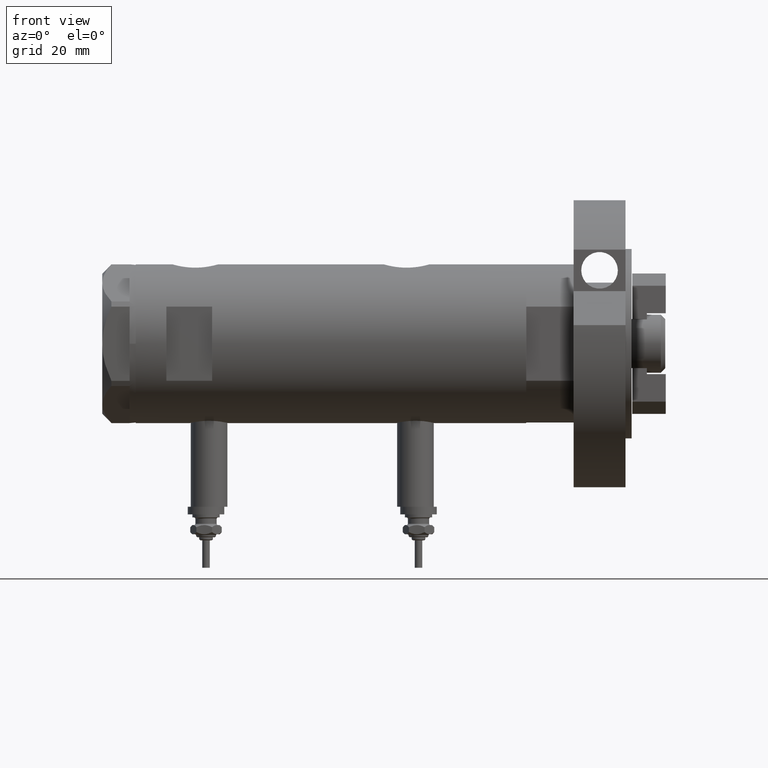
[diagram: clean part render]
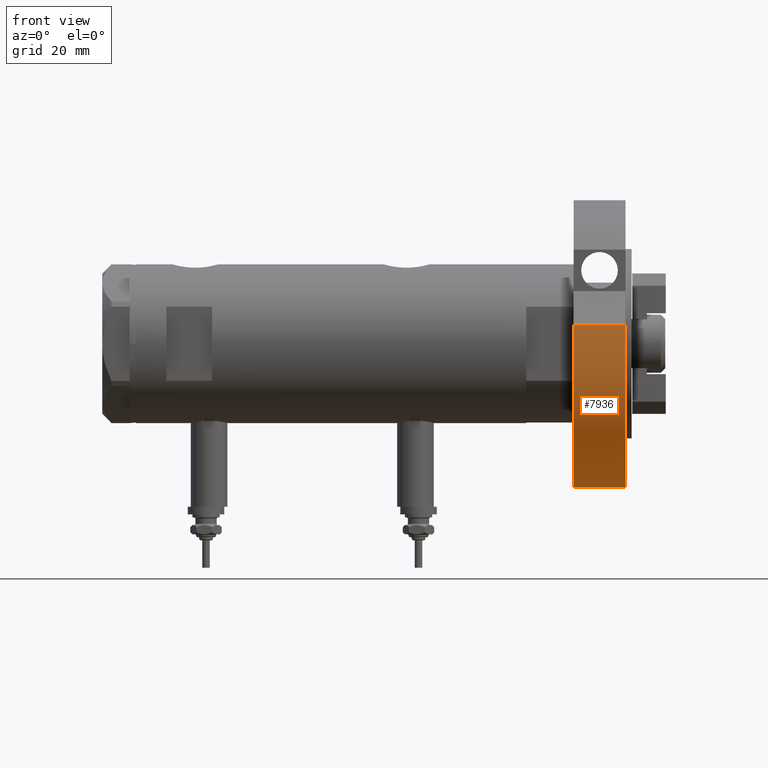
[diagram: same view with one face highlighted and labeled with its STEP entity id]
A machine part, front view. The second image highlights one B-rep face of the part: STEP entity #7936.
In plain terms, the highlighted cylindrical surface (partial cylindrical patch) has radius 47 mm, axis along (-1, -0, 0).
Its self-contained STEP definition (entity closure, byte-faithful):
#18 = EDGE_LOOP ( 'NONE', ( #1171, #3401, #1583, #7809 ) ) ;
#38 = LINE ( 'NONE', #2096, #2272 ) ;
#254 = DIRECTION ( 'NONE',  ( -1.000000000000000000, 0.000000000000000000, 0.000000000000000000 ) ) ;
#940 = AXIS2_PLACEMENT_3D ( 'NONE', #6020, #3520, #4204 ) ;
#1171 = ORIENTED_EDGE ( 'NONE', *, *, #8645, .F. ) ;
#1316 = CARTESIAN_POINT ( 'NONE',  ( 6.092310621118299352, 46.60347359688769586, 0.000000000000000000 ) ) ;
#1364 = AXIS2_PLACEMENT_3D ( 'NONE', #5245, #2753, #4642 ) ;
#1434 = CARTESIAN_POINT ( 'NONE',  ( 6.092310621118299352, 46.60347359688769586, 17.00000000000000000 ) ) ;
#1583 = ORIENTED_EDGE ( 'NONE', *, *, #7277, .F. ) ;
#2096 = CARTESIAN_POINT ( 'NONE',  ( -46.99999999999999289, 0.000000000000000000, 17.00000000000000000 ) ) ;
#2124 = AXIS2_PLACEMENT_3D ( 'NONE', #8167, #6861, #254 ) ;
#2125 = VERTEX_POINT ( 'NONE', #1316 ) ;
#2272 = VECTOR ( 'NONE', #3471, 1000.000000000000000 ) ;
#2568 = VERTEX_POINT ( 'NONE', #1434 ) ;
#2753 = DIRECTION ( 'NONE',  ( 0.000000000000000000, 0.000000000000000000, 1.000000000000000000 ) ) ;
#2823 = CYLINDRICAL_SURFACE ( 'NONE', #2124, 46.99999999999999289 ) ;
#3339 = VECTOR ( 'NONE', #6260, 1000.000000000000000 ) ;
#3401 = ORIENTED_EDGE ( 'NONE', *, *, #3913, .F. ) ;
#3471 = DIRECTION ( 'NONE',  ( -0.000000000000000000, -0.000000000000000000, -1.000000000000000000 ) ) ;
#3491 = CARTESIAN_POINT ( 'NONE',  ( -46.99999999999999289, 0.000000000000000000, 17.00000000000000000 ) ) ;
#3520 = DIRECTION ( 'NONE',  ( 0.000000000000000000, 0.000000000000000000, 1.000000000000000000 ) ) ;
#3862 = CIRCLE ( 'NONE', #940, 46.99999999999999289 ) ;
#3913 = EDGE_CURVE ( 'NONE', #2568, #5059, #7789, .T. ) ;
#4204 = DIRECTION ( 'NONE',  ( 1.000000000000000000, 0.000000000000000000, 0.000000000000000000 ) ) ;
#4370 = EDGE_CURVE ( 'NONE', #2125, #6368, #3862, .T. ) ;
#4642 = DIRECTION ( 'NONE',  ( 1.000000000000000000, 0.000000000000000000, 0.000000000000000000 ) ) ;
#4998 = CARTESIAN_POINT ( 'NONE',  ( -46.99999999999999289, 0.000000000000000000, 0.000000000000000000 ) ) ;
#5059 = VERTEX_POINT ( 'NONE', #3491 ) ;
#5245 = CARTESIAN_POINT ( 'NONE',  ( 0.000000000000000000, 0.000000000000000000, 17.00000000000000000 ) ) ;
#6020 = CARTESIAN_POINT ( 'NONE',  ( 0.000000000000000000, 0.000000000000000000, 0.000000000000000000 ) ) ;
#6260 = DIRECTION ( 'NONE',  ( -0.000000000000000000, -0.000000000000000000, 1.000000000000000000 ) ) ;
#6368 = VERTEX_POINT ( 'NONE', #4998 ) ;
#6723 = FACE_OUTER_BOUND ( 'NONE', #18, .T. ) ;
#6861 = DIRECTION ( 'NONE',  ( -0.000000000000000000, -0.000000000000000000, -1.000000000000000000 ) ) ;
#6919 = LINE ( 'NONE', #7475, #3339 ) ;
#7277 = EDGE_CURVE ( 'NONE', #2125, #2568, #6919, .T. ) ;
#7475 = CARTESIAN_POINT ( 'NONE',  ( 6.092310621118299352, 46.60347359688769586, 0.000000000000000000 ) ) ;
#7789 = CIRCLE ( 'NONE', #1364, 46.99999999999999289 ) ;
#7809 = ORIENTED_EDGE ( 'NONE', *, *, #4370, .T. ) ;
#7936 = ADVANCED_FACE ( 'NONE', ( #6723 ), #2823, .T. ) ;
#8167 = CARTESIAN_POINT ( 'NONE',  ( 0.000000000000000000, 0.000000000000000000, 17.00000000000000000 ) ) ;
#8645 = EDGE_CURVE ( 'NONE', #5059, #6368, #38, .T. ) ;